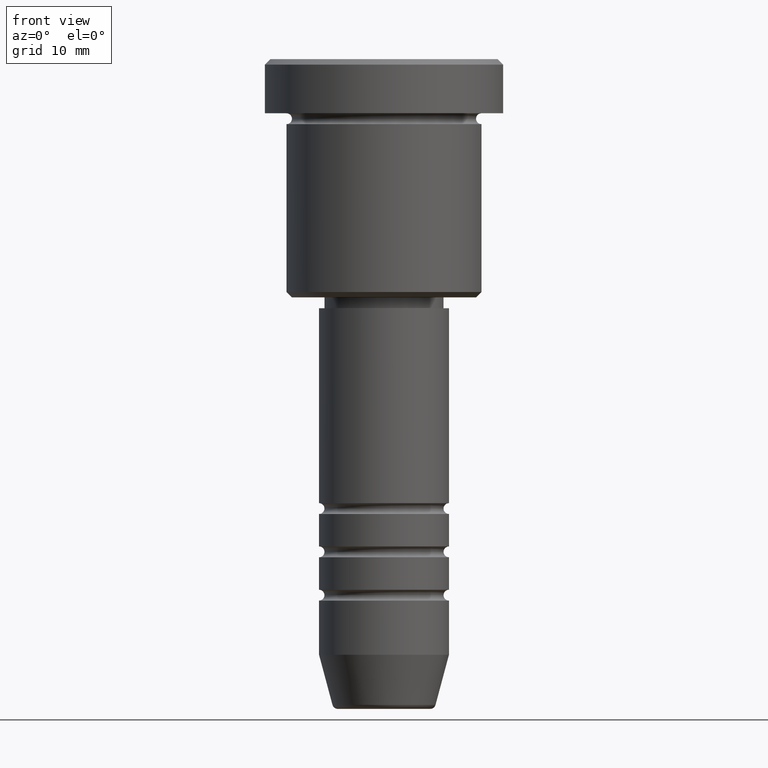
[diagram: clean part render]
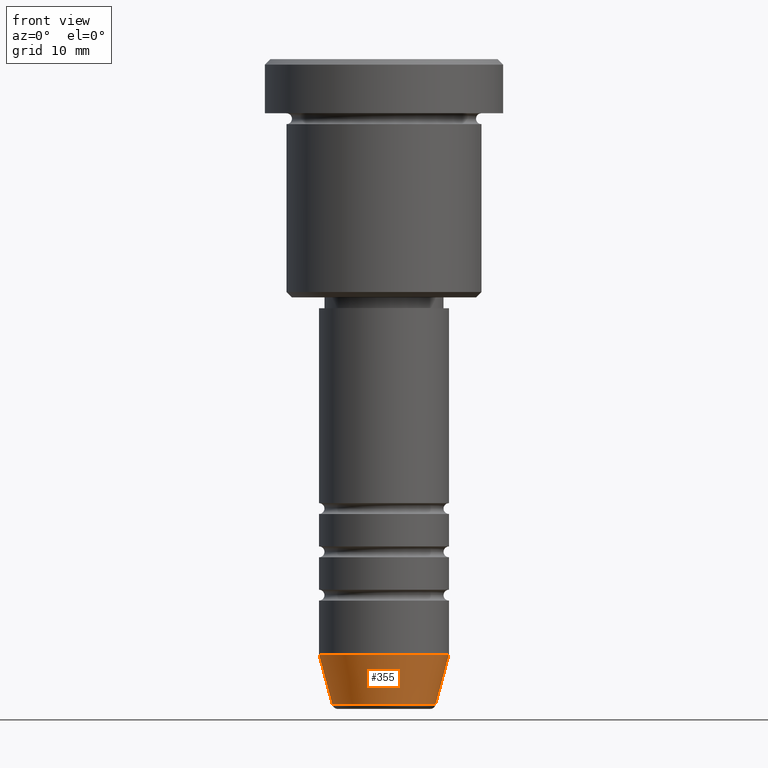
[diagram: same view with one face highlighted and labeled with its STEP entity id]
A machine part, front view. The second image highlights one B-rep face of the part: STEP entity #355.
In plain terms, the highlighted conical surface has half-angle 15 deg.
Its self-contained STEP definition (entity closure, byte-faithful):
#23 = CIRCLE ( 'NONE', #511, 4.759553456999437770 ) ;
#32 = EDGE_CURVE ( 'NONE', #412, #724, #23, .T. ) ;
#60 = EDGE_CURVE ( 'NONE', #412, #325, #394, .T. ) ;
#61 = CARTESIAN_POINT ( 'NONE',  ( 0.000000000000000000, 0.000000000000000000, -55.00000000000000000 ) ) ;
#95 = ORIENTED_EDGE ( 'NONE', *, *, #750, .T. ) ;
#147 = VECTOR ( 'NONE', #1137, 1000.000000000000000 ) ;
#240 = EDGE_LOOP ( 'NONE', ( #848, #1107, #95, #558 ) ) ;
#271 = VECTOR ( 'NONE', #399, 1000.000000000000000 ) ;
#274 = CARTESIAN_POINT ( 'NONE',  ( -6.000000000000000000, 7.347880794884119736E-16, -55.00000000000000000 ) ) ;
#325 = VERTEX_POINT ( 'NONE', #274 ) ;
#338 = CONICAL_SURFACE ( 'NONE', #450, 6.000000000000000000, 0.2617993877991500740 ) ;
#355 = ADVANCED_FACE ( 'NONE', ( #578 ), #338, .T. ) ;
#394 = LINE ( 'NONE', #756, #271 ) ;
#399 = DIRECTION ( 'NONE',  ( -0.2588190451025213501, 3.169619151431772337E-17, 0.9659258262890680902 ) ) ;
#412 = VERTEX_POINT ( 'NONE', #583 ) ;
#418 = CARTESIAN_POINT ( 'NONE',  ( 4.759553456999437770, 0.000000000000000000, -59.62940952255126348 ) ) ;
#429 = CARTESIAN_POINT ( 'NONE',  ( 6.000000000000000000, 0.000000000000000000, -55.00000000000000000 ) ) ;
#450 = AXIS2_PLACEMENT_3D ( 'NONE', #960, #1123, #659 ) ;
#511 = AXIS2_PLACEMENT_3D ( 'NONE', #928, #939, #1019 ) ;
#558 = ORIENTED_EDGE ( 'NONE', *, *, #765, .F. ) ;
#578 = FACE_OUTER_BOUND ( 'NONE', #240, .T. ) ;
#583 = CARTESIAN_POINT ( 'NONE',  ( -4.759553456999437770, 6.588326350684600291E-16, -59.62940952255126348 ) ) ;
#592 = DIRECTION ( 'NONE',  ( -0.000000000000000000, -0.000000000000000000, 1.000000000000000000 ) ) ;
#659 = DIRECTION ( 'NONE',  ( 1.000000000000000000, 0.000000000000000000, 0.000000000000000000 ) ) ;
#680 = DIRECTION ( 'NONE',  ( 1.000000000000000000, 0.000000000000000000, 0.000000000000000000 ) ) ;
#724 = VERTEX_POINT ( 'NONE', #418 ) ;
#742 = VERTEX_POINT ( 'NONE', #429 ) ;
#750 = EDGE_CURVE ( 'NONE', #724, #742, #963, .T. ) ;
#756 = CARTESIAN_POINT ( 'NONE',  ( -6.000000000000000000, 7.347880794884119736E-16, -55.00000000000000000 ) ) ;
#765 = EDGE_CURVE ( 'NONE', #325, #742, #1017, .T. ) ;
#769 = AXIS2_PLACEMENT_3D ( 'NONE', #61, #592, #680 ) ;
#848 = ORIENTED_EDGE ( 'NONE', *, *, #60, .F. ) ;
#867 = CARTESIAN_POINT ( 'NONE',  ( 6.000000000000000000, 0.000000000000000000, -55.00000000000000000 ) ) ;
#928 = CARTESIAN_POINT ( 'NONE',  ( 0.000000000000000000, 0.000000000000000000, -59.62940952255126348 ) ) ;
#939 = DIRECTION ( 'NONE',  ( -0.000000000000000000, -0.000000000000000000, 1.000000000000000000 ) ) ;
#960 = CARTESIAN_POINT ( 'NONE',  ( 0.000000000000000000, 0.000000000000000000, -55.00000000000000000 ) ) ;
#963 = LINE ( 'NONE', #867, #147 ) ;
#1017 = CIRCLE ( 'NONE', #769, 6.000000000000000000 ) ;
#1019 = DIRECTION ( 'NONE',  ( 1.000000000000000000, 0.000000000000000000, 0.000000000000000000 ) ) ;
#1107 = ORIENTED_EDGE ( 'NONE', *, *, #32, .T. ) ;
#1123 = DIRECTION ( 'NONE',  ( -0.000000000000000000, -0.000000000000000000, 1.000000000000000000 ) ) ;
#1137 = DIRECTION ( 'NONE',  ( 0.2588190451025213501, 0.000000000000000000, 0.9659258262890680902 ) ) ;